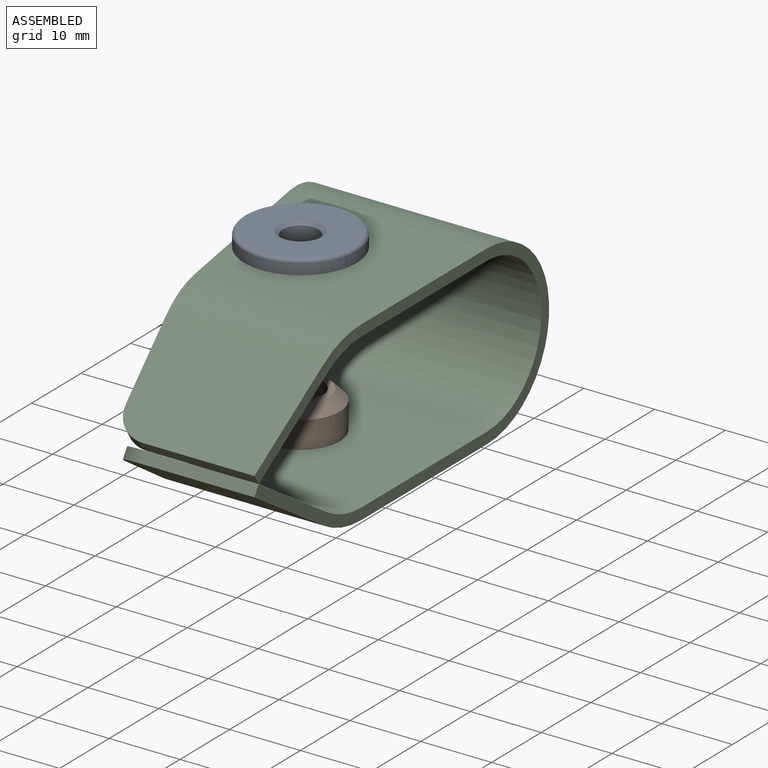
[diagram: assembled view]
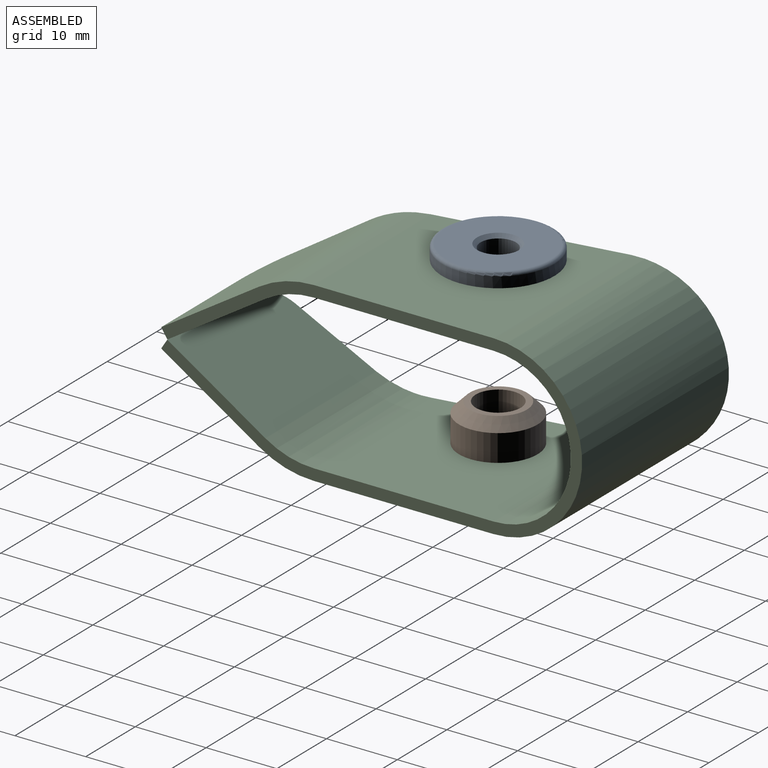
[diagram: assembled view, second angle]
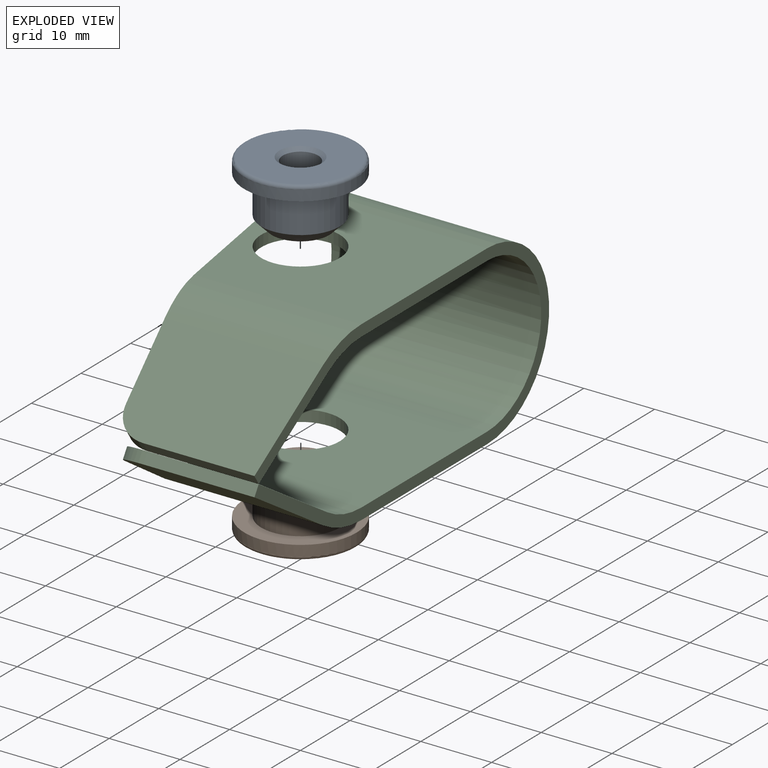
[diagram: exploded view]
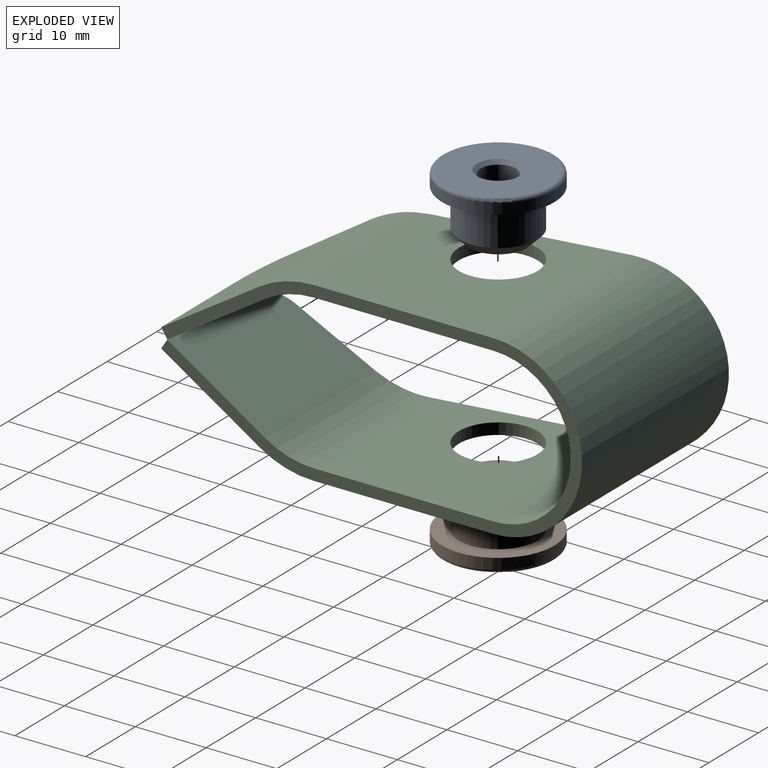
[diagram: exploded view, second angle]
ASSEMBLY  parts=3 mates=2
PART A: 10 faces, bbox 17.2x17.2x8.9 mm
  f0: cylinder r=2.5mm len=7.4mm, axis (0,0,1), area 116.2mm2, adj f8,f9
  f1: plane 8.1x8.1mm, normal (0,0,-1), area 13mm2, adj f2,f9
  f2: cone r=4.05mm half-angle=45deg, axis (0,0,1), area 64mm2, adj f1,f3
  f3: cylinder r=5.55mm len=11.1mm, axis (0,0,1), area 188.3mm2, adj f2,f4
  f4: plane 15.86x15.86mm, normal (0,0,-1), area 100.8mm2, adj f3,f5
  f5: cylinder r=7.93mm len=15.86mm, axis (0,0,1), area 74.7mm2, adj f4,f7
  f6: plane 14.86x14.86mm, normal (0,0,1), area 145.2mm2, adj f7,f8
  f7: torus R=7.43mm, axis (0,0,-1), area 38.2mm2, adj f5,f6
  f8: cone r=2.5mm half-angle=45deg, axis (0,0,1), area 12.2mm2, adj f0,f6
  f9: cone r=3.5mm half-angle=45deg, axis (0,0,-1), area 26.7mm2, adj f0,f1
PART B: 9 faces, bbox 17.2x17.2x8.9 mm
  f0: plane 14.86x14.86mm, normal (0,0,1), area 131mm2, adj f7,f8
  f1: cylinder r=3.17mm len=8.4mm, axis (0,0,1), area 167.6mm2, adj f2,f8
  f2: plane 8.1x8.1mm, normal (0,0,-1), area 19.9mm2, adj f1,f3
  f3: cone r=4.05mm half-angle=45deg, axis (0,0,1), area 64mm2, adj f2,f4
  f4: cylinder r=5.55mm len=11.1mm, axis (0,0,1), area 188.3mm2, adj f3,f5
  f5: plane 15.86x15.86mm, normal (0,0,-1), area 100.8mm2, adj f4,f6
  f6: cylinder r=7.93mm len=15.86mm, axis (0,0,1), area 74.7mm2, adj f5,f7
  f7: torus R=7.43mm, axis (0,0,-1), area 38.2mm2, adj f0,f6
  f8: cone r=3.17mm half-angle=45deg, axis (0,0,1), area 15.2mm2, adj f0,f1
PART C: 34 faces, bbox 29.6x59.4x25 mm
  f0: plane 25.38x1.6mm, normal (1,0,0), area 40.6mm2, adj f3,f4,f10,f31
  f1: cylinder r=5.55mm len=11.1mm, axis (0,0,1), area 55.8mm2, adj f3,f4
  f2: plane 25.38x4.18mm, normal (-0.99,-0.16,0), area 41.2mm2, adj f3,f4,f11,f30
  f3: plane 27.82x25.38mm, normal (0,0,-1), area 556.1mm2, adj f0,f1,f2,f12,f32
  f4: plane 27.82x25.38mm, normal (0,0,1), area 556.1mm2, adj f0,f1,f2,f13,f33
  f5: plane 25.38x1.6mm, normal (1,0,0), area 40.6mm2, adj f8,f9,f10,f21
  f6: cylinder r=5.55mm len=11.1mm, axis (0,0,-1), area 55.8mm2, adj f8,f9
  f7: plane 25.38x4.18mm, normal (-0.99,-0.16,0), area 41.2mm2, adj f8,f9,f11,f20
  f8: plane 27.82x25.38mm, normal (0,0,1), area 556.1mm2, adj f5,f6,f7,f12,f22
  f9: plane 27.82x25.38mm, normal (0,0,-1), area 556.1mm2, adj f5,f6,f7,f13,f23
  f10: plane 25x12.5mm, normal (1,0,0), area 58.8mm2, adj f0,f5,f12,f13
  f11: bspline ~25x12.5mm, area 59.2mm2, adj f2,f7,f12,f13
  f12: cylinder r=12.5mm len=27.82mm, axis (-1,0,0), area 1092.4mm2, adj f3,f8,f10,f11
  f13: cylinder r=10.9mm len=27.82mm, axis (-1,0,0), area 952.6mm2, adj f4,f9,f10,f11
  f14: plane 15.73x1.35mm, normal (0,-0.84,-0.54), area 25.2mm2, adj f15,f17,f18,f19
  f15: plane 14.71x10.23mm, normal (1,0,0), area 26.3mm2, adj f14,f17,f18,f21
  f16: plane 11.08x7.9mm, normal (-0.99,-0.12,-0.07), area 19.6mm2, adj f17,f18,f19,f20
  f17: plane 22.36x13.85mm, normal (0,-0.54,0.84), area 345.3mm2, adj f14,f15,f16,f19,f22
  f18: plane 22.36x13.85mm, normal (0,0.54,-0.84), area 345.3mm2, adj f14,f15,f16,f19,f23
  f19: cylinder r=5mm len=4.95mm, axis (0,0.54,-0.84), area 11.5mm2, adj f14,f16,f17,f18
  f20: bspline ~7.72x3.61mm, area 12.6mm2, adj f7,f16,f22,f23
  f21: plane 7.72x3.61mm, normal (1,0,0), area 12.3mm2, adj f5,f15,f22,f23
  f22: cylinder r=14.3mm len=23.64mm, axis (-1,0,0), area 187.5mm2, adj f8,f17,f20,f21
  f23: cylinder r=12.7mm len=23.64mm, axis (-1,0,0), area 166.5mm2, adj f9,f18,f20,f21
  f24: plane 14.71x10.23mm, normal (1,0,0), area 26.3mm2, adj f25,f27,f28,f31
  f25: plane 15.73x1.35mm, normal (0,-0.84,0.54), area 25.2mm2, adj f24,f27,f28,f29
  f26: plane 11.08x7.9mm, normal (-0.99,-0.12,0.07), area 19.6mm2, adj f27,f28,f29,f30
  f27: plane 22.36x13.85mm, normal (0,-0.54,-0.84), area 345.3mm2, adj f24,f25,f26,f29,f32
  f28: plane 22.36x13.85mm, normal (0,0.54,0.84), area 345.3mm2, adj f24,f25,f26,f29,f33
  f29: cylinder r=5mm len=4.95mm, axis (0,-0.54,-0.84), area 11.5mm2, adj f25,f26,f27,f28
  f30: bspline ~7.72x3.61mm, area 12.4mm2, adj f2,f26,f32,f33
  f31: plane 7.72x3.61mm, normal (1,0,0), area 12.3mm2, adj f0,f24,f32,f33
  f32: cylinder r=14.3mm len=23.64mm, axis (-1,0,0), area 187.5mm2, adj f3,f27,f30,f31
  f33: cylinder r=12.7mm len=23.64mm, axis (-1,0,0), area 166.5mm2, adj f4,f28,f30,f31
PLACE A t=(-3,-22.85,14.5)mm
PLACE B rot(axis=(1,0,0),180deg) t=(-3,-22.85,-14.5)mm
PLACE C at identity fixed
MATE revolute C.f6 <-> B.f1  axis (0,0,-1) through (-3,-22.85,-12.5)mm
MATE fastened C.f1 <-> A.f0  axis (0,0,1) through (-3,-22.85,12.5)mm
